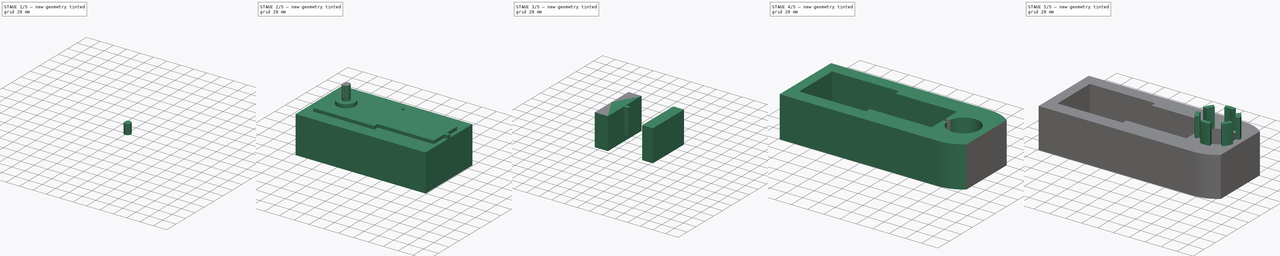
[diagram: build sequence overview — one tinted view per stage of 5, left to right]
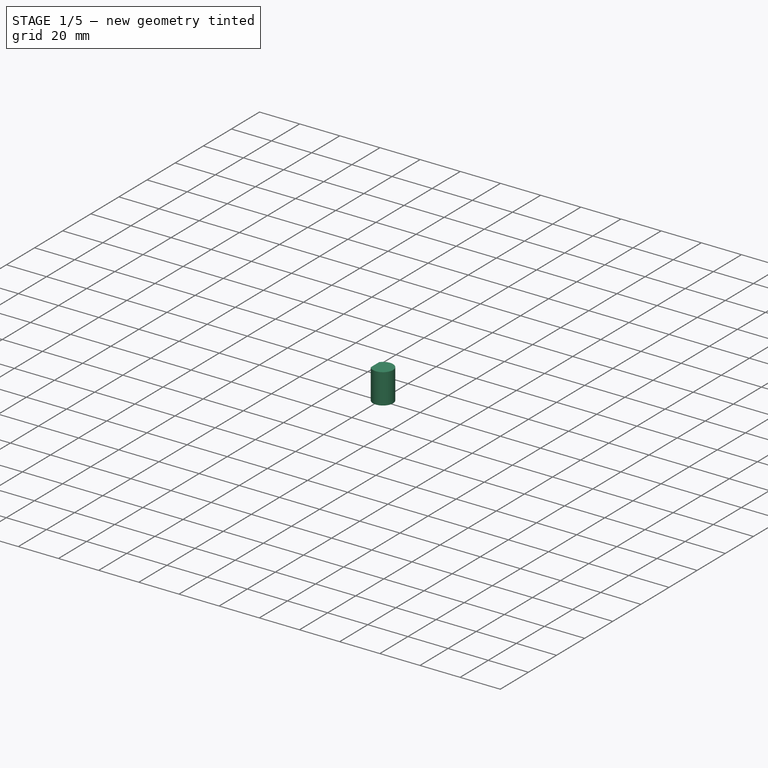
[diagram: stage 1 of 5 — iso view after this stage's code; geometry added in this stage tinted green]
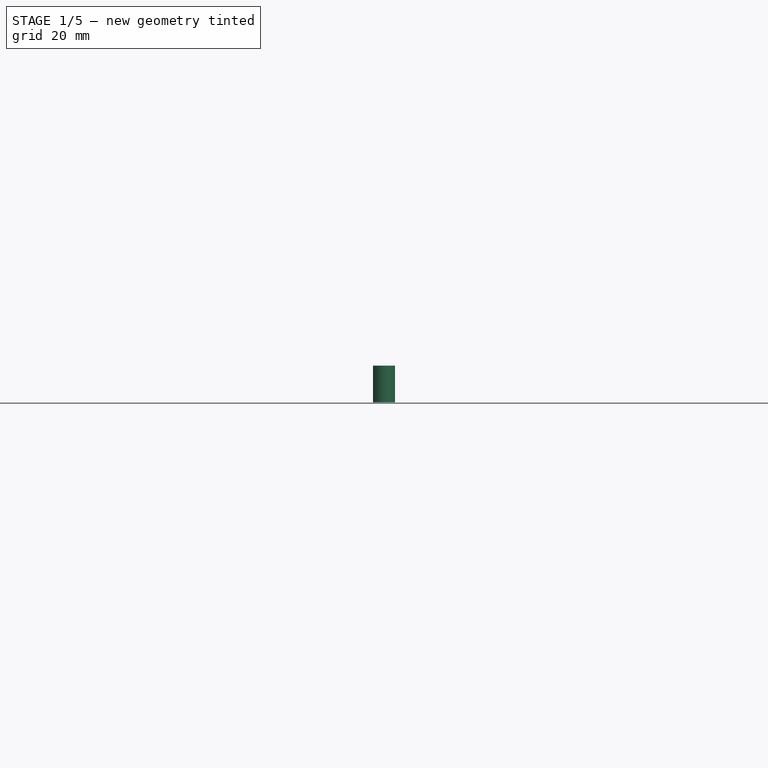
[diagram: stage 1 of 5 — front view after this stage's code; geometry added in this stage tinted green]
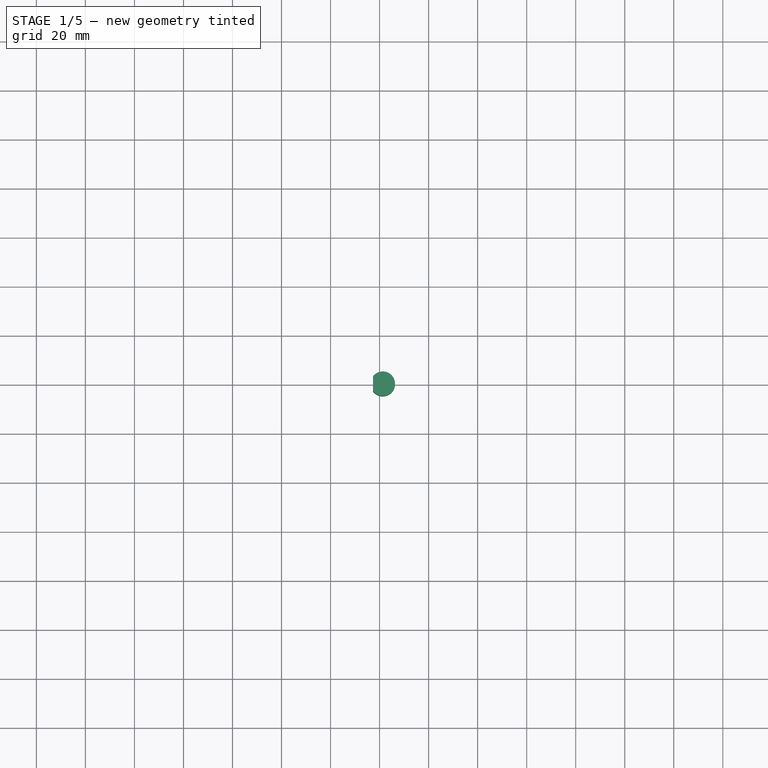
[diagram: stage 1 of 5 — top view after this stage's code; geometry added in this stage tinted green]
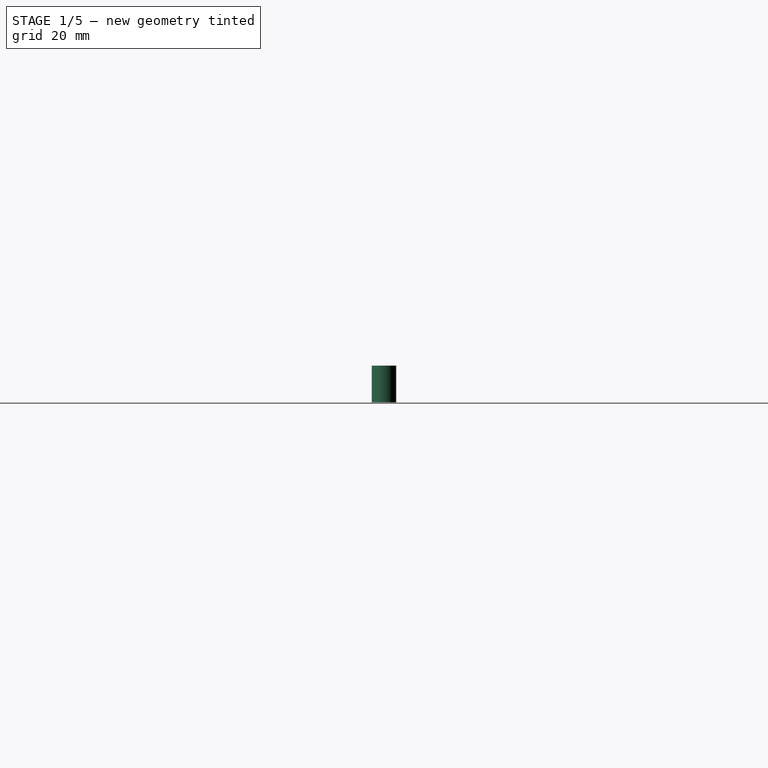
[diagram: stage 1 of 5 — right view after this stage's code; geometry added in this stage tinted green]
FCSTD DOCUMENT  (FreeCAD 0.20R29177 +426 (Git))
Label: motorMountMk2
License: All rights reserved
LicenseURL: http://en.wikipedia.org/wiki/All_rights_reserved
objects: Sketcher::SketchObject×9, Part::Extrusion×9, Part::Box×4, Part::MultiFuse×4, Part::Cut×4, Part::FeaturePython×1
note: 31 computed .brp shape members not serialized (recipe doc carries the construction recipe); baked Part::Feature solids carry a one-line shape summary decoded from their .brp

FEATURE [Part::Box] Box001  label="MotorHead"
  AttacherType = Attacher::AttachEngine3D
  Height = 44.4
  Length = 82
  Placement = pos=(-82,-9.63,0) rot=(0,0,1;0rad)
  Width = 58
FEATURE [Sketcher::SketchObject] Sketch
  ExternalGeometry = -> [Box001]
  FullyConstrained = true
  MapMode = 5
  Placement = pos=(-82,-9.63,44.4) rot=(0,0,1;0rad)
  Support = -> [Box001]
  sketch-geometry (2):
    g0: Circle CenterX=23.3 CenterY=30 CenterZ=0 NormalX=0 NormalY=0 NormalZ=1 AngleXU=0 Radius=12.3
    g1: GeomPoint X=23.3 Y=58 Z=0
  constraints (5):
    c: DistanceX(g0) = 23.3
    c: PointOnObject(g1,g-4)
    c: DistanceX(g-4,g1) = 23.3
    c: DistanceY(g0,g1) = 28
    c: Diameter(g0) = 24.6
FEATURE [Part::Extrusion] Extrude  label="MotorShaftBasePlate"
  Base = -> Sketch
  Dir = (0,0,1)
  DirMode = 2
  FaceMakerClass = Part::FaceMakerBullseye
  LengthFwd = 5
  LengthRev = 0
  Solid = true
  Symmetric = false
FEATURE [Sketcher::SketchObject] Sketch001
  ExternalGeometry = -> [Extrude,Box001]
  FullyConstrained = true
  MapMode = 5
  Placement = pos=(0,0,49.4) rot=(0,0,1;0rad)
  Support = -> [Extrude]
  sketch-geometry (3):
    g0: GeomPoint X=-82 Y=20.37 Z=0
    g1: GeomPoint X=-58.7 Y=48.37 Z=0
    g2: Circle CenterX=-58.7 CenterY=20.37 CenterZ=0 NormalX=0 NormalY=0 NormalZ=1 AngleXU=0 Radius=5
  constraints (6):
    c: PointOnObject(g0,g-4)
    c: PointOnObject(g1,g-5)
    c: DistanceY(g0,g-5) = 28
    c: DistanceX(g-5,g1) = 23.3
    c: Diameter(g2) = 10
    c: Coincident(g2,g-3)
FEATURE [Part::Extrusion] Extrude001  label="MotorShaftFull"
  Base = -> Sketch001
  Dir = (0,0,1)
  DirMode = 2
  FaceMakerClass = Part::FaceMakerBullseye
  LengthFwd = 4
  LengthRev = 0
  Solid = true
  Symmetric = false
FEATURE [Sketcher::SketchObject] Sketch002
  ExternalGeometry = -> [Extrude001]
  FullyConstrained = true
  MapMode = 5
  Placement = pos=(0,0,53.4) rot=(0,0,1;0rad)
  Support = -> [Extrude001]
  sketch-geometry (2):
    g0: LineSegment StartX=-62.7 StartY=23.37 StartZ=0 EndX=-62.7 EndY=17.37 EndZ=0
    g1: ArcOfCircle CenterX=-58.7 CenterY=20.37 CenterZ=0 NormalX=0 NormalY=0 NormalZ=1 AngleXU=0 Radius=5 StartAngle=3.78509 EndAngle=8.78128
  constraints (6):
    c: PointOnObject(g0,g-3)
    c: Vertical(g0)
    c: Coincident(g1,g-3)
    c: Coincident(g1,g0)
    c: Coincident(g1,g0)
    c: DistanceX(g0,g1) = 4
FEATURE [Part::Extrusion] Extrude002  label="MotorShaftD"
  Base = -> Sketch002
  Dir = (0,0,1)
  DirMode = 2
  FaceMakerClass = Part::FaceMakerBullseye
  LengthFwd = 15
  LengthRev = 0
  Solid = true
  Symmetric = false
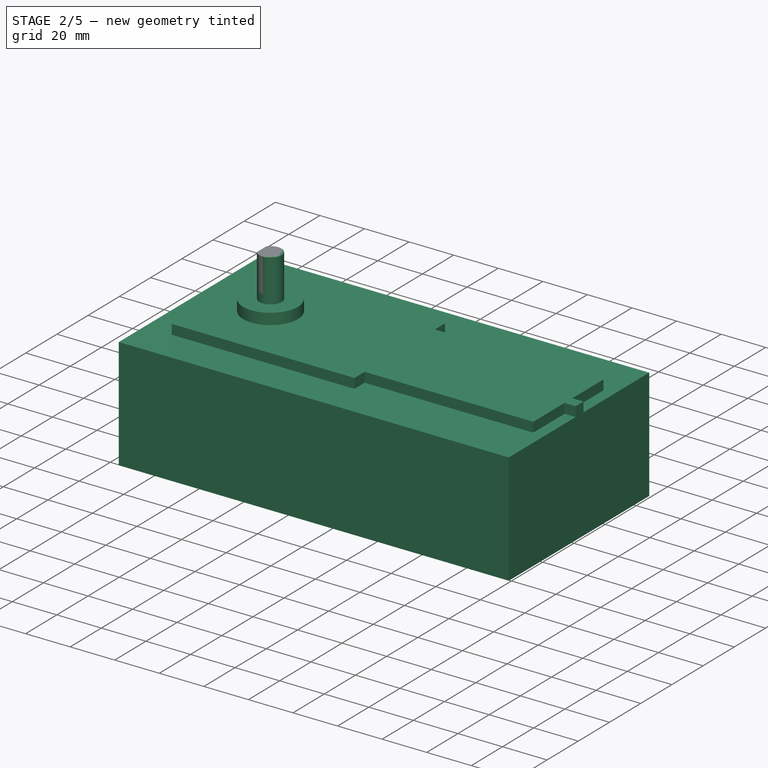
[diagram: stage 2 of 5 — iso view after this stage's code; geometry added in this stage tinted green]
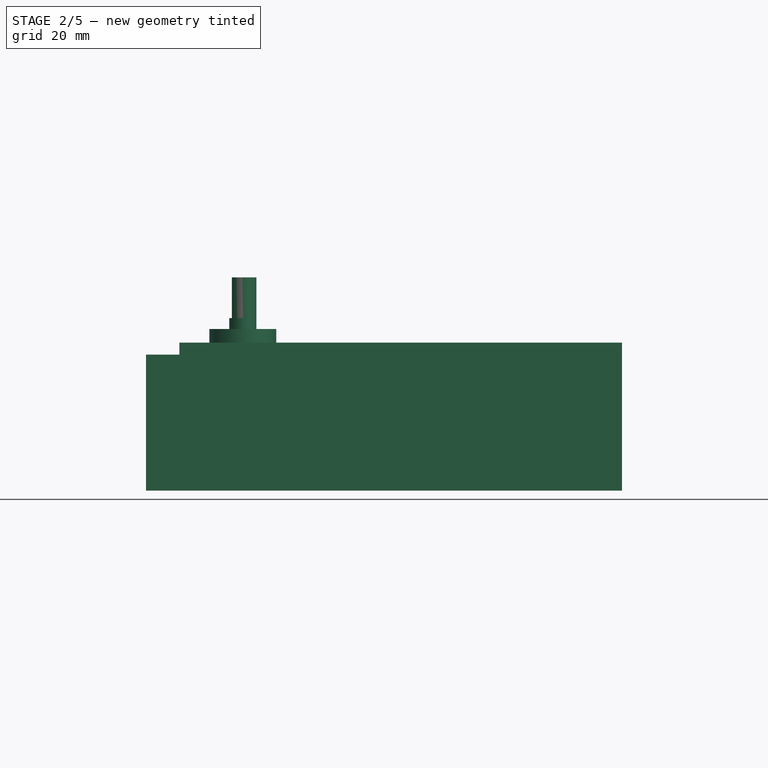
[diagram: stage 2 of 5 — front view after this stage's code; geometry added in this stage tinted green]
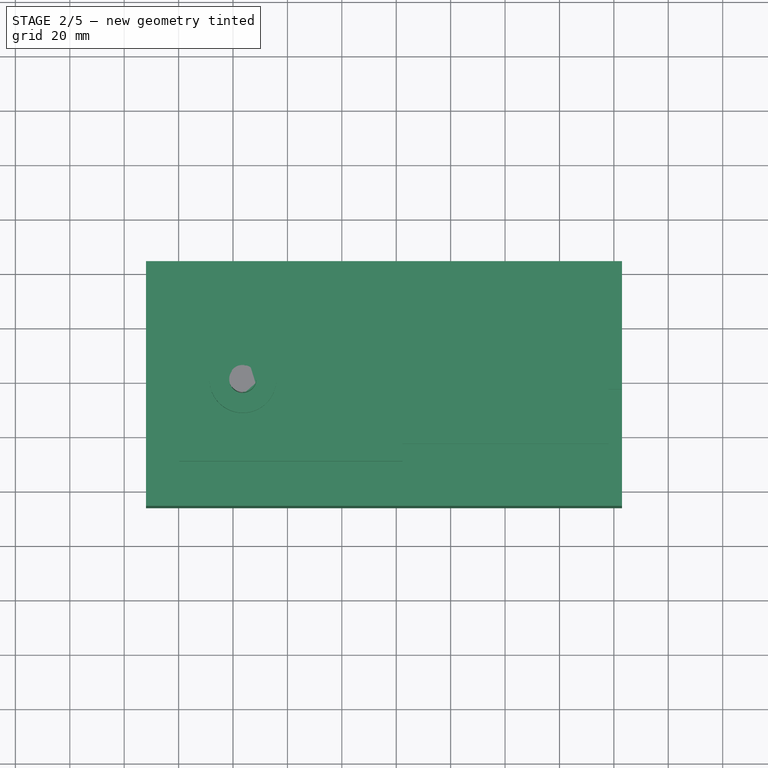
[diagram: stage 2 of 5 — top view after this stage's code; geometry added in this stage tinted green]
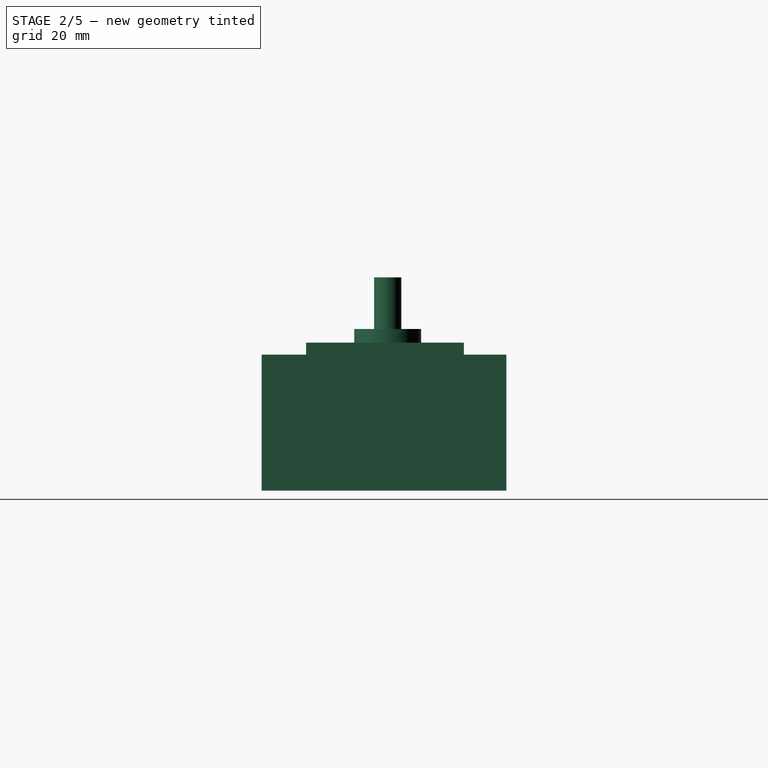
[diagram: stage 2 of 5 — right view after this stage's code; geometry added in this stage tinted green]
FEATURE [Part::Box] Box  label="MotorCyclinder"
  AttacherType = Attacher::AttachEngine3D
  Height = 44.4
  Length = 75.7
  Placement = pos=(0,-3.13,0) rot=(0,0,1;0rad)
  Width = 45
FEATURE [Part::Box] Box002  label="MotorCastOuter"
  AttacherType = Attacher::AttachEngine3D
  Height = 50
  Length = 175
  Placement = pos=(-92,-26,-10) rot=(0,0,1;0rad)
  Width = 90
FEATURE [Part::Box] Box007  label="NubChannel"
  AttacherType = Attacher::AttachEngine3D
  Height = 44.4
  Length = 5
  Placement = pos=(75.7,16.87,0) rot=(0,0,1;0rad)
  Width = 5
FEATURE [Part::MultiFuse] Fusion  label="MotorShaftAssembly"
  Shapes = -> [Extrude,Extrude001,Extrude002]
FEATURE [Part::MultiFuse] Fusion005  label="Motor"
  Placement = pos=(2.3,0,0) rot=(0,0,1;0rad)
  Shapes = -> [Box,Box001,Box007,Fusion]
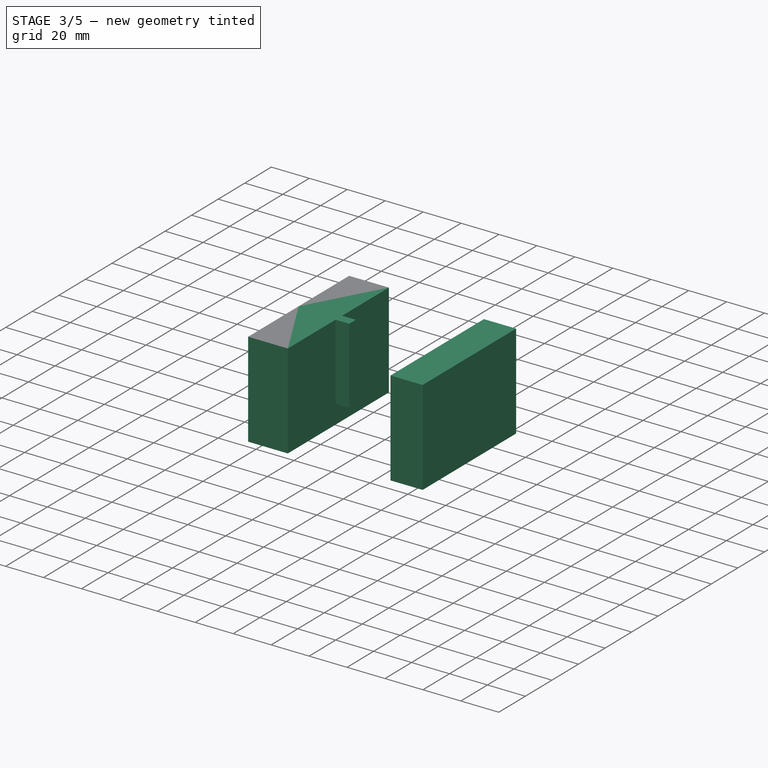
[diagram: stage 3 of 5 — iso view after this stage's code; geometry added in this stage tinted green]
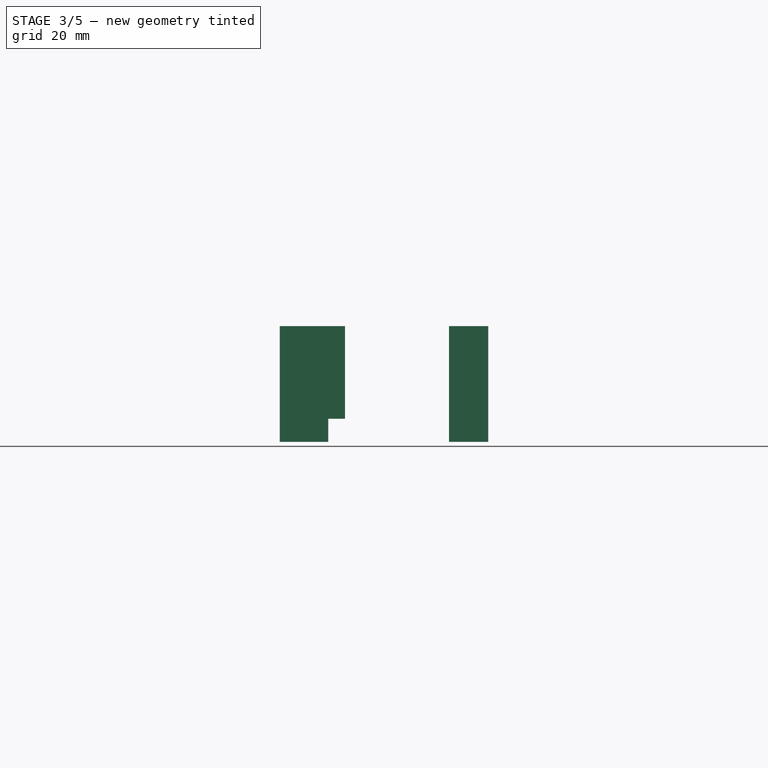
[diagram: stage 3 of 5 — front view after this stage's code; geometry added in this stage tinted green]
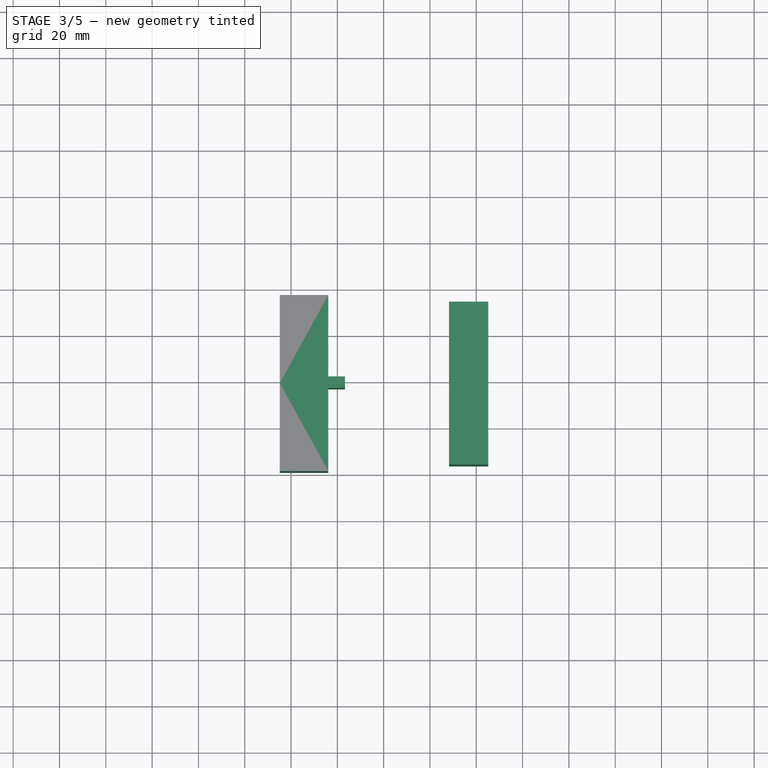
[diagram: stage 3 of 5 — top view after this stage's code; geometry added in this stage tinted green]
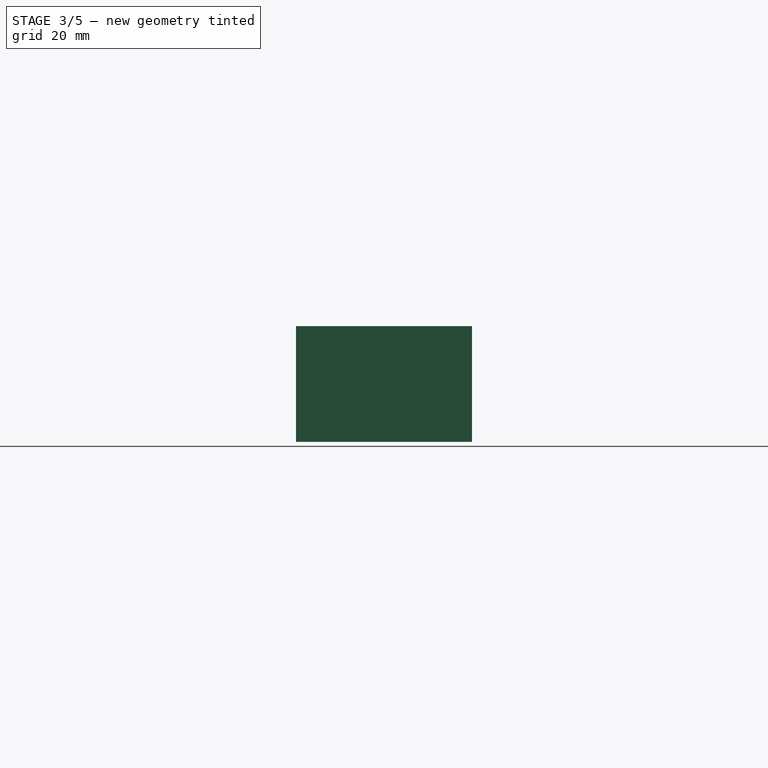
[diagram: stage 3 of 5 — right view after this stage's code; geometry added in this stage tinted green]
FEATURE [Part::FeaturePython] Tube  label="SteeringShaftMount"  # WARN: FeaturePython — macro-defined, semantics opaque (R4)
  AttacherType = Attacher::AttachEngine3D
  Height = 50
  InnerRadius = 19.07
  OuterRadius = 45
  Placement = pos=(120.15,19,-10) rot=(0,0,1;0.261799rad)
FEATURE [Sketcher::SketchObject] Sketch003
  ExternalGeometry = -> [Tube]
  FullyConstrained = true
  MapMode = 5
  Placement = pos=(120.15,19,40) rot=(0,0,1;0.261799rad)
  Support = -> [Tube]
  sketch-geometry (42):
    g0: Circle CenterX=0 CenterY=1.71e-14 CenterZ=0 NormalX=0 NormalY=0 NormalZ=1 AngleXU=0 Radius=24.075
    g1: ArcOfCircle CenterX=0 CenterY=1.71e-14 CenterZ=0 NormalX=0 NormalY=0 NormalZ=1 AngleXU=0 Radius=24.075 StartAngle=1.0472 EndAngle=1.5708
    g2: LineSegment StartX=0 StartY=1.71e-14 StartZ=0 EndX=12.0375 EndY=20.8496 EndZ=0
    g3: LineSegment StartX=0 StartY=1.71e-14 StartZ=0 EndX=0 EndY=24.075 EndZ=0
    g4: ArcOfCircle CenterX=0 CenterY=1.71e-14 CenterZ=0 NormalX=0 NormalY=0 NormalZ=1 AngleXU=0 Radius=19.075 StartAngle=1.0472 EndAngle=1.5708
    g5: LineSegment StartX=0 StartY=24.075 StartZ=0 EndX=1.2e-15 EndY=19.075 EndZ=0
    g6: LineSegment StartX=12.0375 StartY=20.8496 StartZ=0 EndX=9.5375 EndY=16.5194 EndZ=0
    g7: ArcOfCircle CenterX=0 CenterY=1.71e-14 CenterZ=0 NormalX=0 NormalY=0 NormalZ=1 AngleXU=0 Radius=24.075 StartAngle=0.523599 EndAngle=1.0472
    g8: ArcOfCircle CenterX=0 CenterY=1.71e-14 CenterZ=0 NormalX=0 NormalY=0 NormalZ=1 AngleXU=0 Radius=24.075 StartAngle=0 EndAngle=0.523599
    g9: LineSegment StartX=0 StartY=1.71e-14 StartZ=0 EndX=20.8496 EndY=12.0375 EndZ=0
    g10: LineSegment StartX=0 StartY=1.71e-14 StartZ=0 EndX=24.075 EndY=8.3e-15 EndZ=0
    g11: ArcOfCircle CenterX=0 CenterY=1.71e-14 CenterZ=0 NormalX=0 NormalY=0 NormalZ=1 AngleXU=0 Radius=19.07 StartAngle=0 EndAngle=0.523599
    g12: LineSegment StartX=19.07 StartY=1.41e-14 StartZ=0 EndX=24.075 EndY=8.3e-15 EndZ=0
    g13: LineSegment StartX=16.5151 StartY=9.535 StartZ=0 EndX=20.8496 EndY=12.0375 EndZ=0
    g14: ArcOfCircle CenterX=0 CenterY=1.71e-14 CenterZ=0 NormalX=0 NormalY=0 NormalZ=1 AngleXU=0 Radius=24.075 StartAngle=5.75959 EndAngle=6.28319
    g15: ArcOfCircle CenterX=0 CenterY=1.71e-14 CenterZ=0 NormalX=0 NormalY=0 NormalZ=1 AngleXU=0 Radius=24.075 StartAngle=5.23599 EndAngle=5.75959
    g16: LineSegment StartX=12.0375 StartY=-20.8496 StartZ=0 EndX=-1.8e-15 EndY=1.78e-14 EndZ=0
    g17: LineSegment StartX=0 StartY=1.71e-14 StartZ=0 EndX=20.8496 EndY=-12.0375 EndZ=0
    g18: ArcOfCircle CenterX=0 CenterY=1.71e-14 CenterZ=0 NormalX=0 NormalY=0 NormalZ=1 AngleXU=0 Radius=19.075 StartAngle=5.23599 EndAngle=5.75959
    g19: LineSegment StartX=9.5375 StartY=-16.5194 StartZ=0 EndX=12.0375 EndY=-20.8496 EndZ=0
    g20: LineSegment StartX=16.5194 StartY=-9.5375 StartZ=0 EndX=20.8496 EndY=-12.0375 EndZ=0
    g21: ArcOfCircle CenterX=0 CenterY=1.71e-14 CenterZ=0 NormalX=0 NormalY=0 NormalZ=1 AngleXU=0 Radius=24.075 StartAngle=4.71239 EndAngle=5.23599
    g22: ArcOfCircle CenterX=0 CenterY=1.71e-14 CenterZ=0 NormalX=0 NormalY=0 NormalZ=1 AngleXU=0 Radius=24.075 StartAngle=4.18879 EndAngle=4.71239
    g23: LineSegment StartX=0 StartY=1.71e-14 StartZ=0 EndX=-4.4e-15 EndY=-24.075 EndZ=0
    g24: LineSegment StartX=0 StartY=1.71e-14 StartZ=0 EndX=-12.0375 EndY=-20.8496 EndZ=0
    g25: ArcOfCircle CenterX=0 CenterY=1.71e-14 CenterZ=0 NormalX=0 NormalY=0 NormalZ=1 AngleXU=0 Radius=19.07 StartAngle=4.18879 EndAngle=4.71239
    g26: LineSegment StartX=-12.0375 StartY=-20.8496 StartZ=0 EndX=-9.535 EndY=-16.5151 EndZ=0
    g27: LineSegment StartX=-3.5e-15 StartY=-19.07 StartZ=0 EndX=-4.4e-15 EndY=-24.075 EndZ=0
    g28: ArcOfCircle CenterX=0 CenterY=1.71e-14 CenterZ=0 NormalX=0 NormalY=0 NormalZ=1 AngleXU=0 Radius=24.075 StartAngle=3.66519 EndAngle=4.18879
    g29: ArcOfCircle CenterX=0 CenterY=1.71e-14 CenterZ=0 NormalX=0 NormalY=0 NormalZ=1 AngleXU=0 Radius=24.075 StartAngle=3.14159 EndAngle=3.66519
    g30: LineSegment StartX=-20.8496 StartY=-12.0375 StartZ=0 EndX=0 EndY=1.78e-14 EndZ=0
    g31: LineSegment StartX=0 StartY=1.71e-14 StartZ=0 EndX=-24.075 EndY=1.71e-14 EndZ=0
    g32: ArcOfCircle CenterX=0 CenterY=1.71e-14 CenterZ=0 NormalX=0 NormalY=0 NormalZ=1 AngleXU=0 Radius=19.07 StartAngle=3.14159 EndAngle=3.66519
    g33: LineSegment StartX=-19.07 StartY=1.71e-14 StartZ=0 EndX=-24.075 EndY=1.71e-14 EndZ=0
    g34: LineSegment StartX=-20.8496 StartY=-12.0375 StartZ=0 EndX=-16.5151 EndY=-9.535 EndZ=0
    g35: ArcOfCircle CenterX=0 CenterY=1.71e-14 CenterZ=0 NormalX=0 NormalY=0 NormalZ=1 AngleXU=0 Radius=24.075 StartAngle=2.61799 EndAngle=3.14159
    g36: ArcOfCircle CenterX=0 CenterY=1.71e-14 CenterZ=0 NormalX=0 NormalY=0 NormalZ=1 AngleXU=0 Radius=24.075 StartAngle=2.0944 EndAngle=2.61799
    g37: LineSegment StartX=0 StartY=1.71e-14 StartZ=0 EndX=-12.0375 EndY=20.8496 EndZ=0
    g38: LineSegment StartX=-20.8496 StartY=12.0375 StartZ=0 EndX=0 EndY=1.78e-14 EndZ=0
    g39: ArcOfCircle CenterX=0 CenterY=1.71e-14 CenterZ=0 NormalX=0 NormalY=0 NormalZ=1 AngleXU=0 Radius=19.075 StartAngle=2.0944 EndAngle=2.61799
    g40: LineSegment StartX=-16.5194 StartY=9.5375 StartZ=0 EndX=-20.8496 EndY=12.0375 EndZ=0
    g41: LineSegment StartX=-12.0375 StartY=20.8496 StartZ=0 EndX=-9.5375 EndY=16.5194 EndZ=0
  constraints (109):
    c: Coincident(g0,g-4)
    c: Radius(g0) = 24.075
    c: Coincident(g1,g0)
    c: PointOnObject(g1,g0)
    c: Angle(g1) = 0.523599
    c: Coincident(g2,g0)
    c: Coincident(g2,g1)
    c: Coincident(g3,g0)
    c: Coincident(g3,g1)
    c: Vertical(g3)
    c: Coincident(g4,g0)
    c: PointOnObject(g4,g3)
    c: PointOnObject(g4,g2)
    c: Radius(g4) = 19.075
    c: Coincident(g5,g1)
    c: Coincident(g5,g4)
    c: Coincident(g6,g1)
    c: Coincident(g6,g4)
    c: Coincident(g7,g0)
    c: Coincident(g7,g1)
    c: Angle(g7) = 0.523599
    c: Coincident(g8,g0)
    c: Coincident(g8,g7)
    c: Angle(g8) = 0.523599
    c: Coincident(g9,g0)
    c: Coincident(g9,g7)
    c: Coincident(g10,g0)
    c: Coincident(g10,g8)
    c: Coincident(g11,g0)
    c: PointOnObject(g11,g-3)
    c: Angle(g11) = 0.523599
    c: PointOnObject(g11,g9)
    c: Coincident(g12,g11)
    c: Coincident(g12,g8)
    c: Coincident(g13,g11)
    c: Coincident(g13,g7)
    c: Coincident(g14,g0)
    c: Coincident(g14,g8)
    c: Angle(g14) = 0.523599
    c: Coincident(g15,g0)
    c: Coincident(g15,g14)
    c: Angle(g15) = 0.523599
    c: Coincident(g16,g15)
    c: Coincident(g16,g0)
    c: Coincident(g17,g0)
    c: Coincident(g17,g14)
    c: Coincident(g18,g0)
    c: PointOnObject(g18,g17)
    c: PointOnObject(g18,g16)
    c: Radius(g18) = 19.075
    c: Coincident(g19,g18)
    c: Coincident(g19,g15)
    c: Coincident(g20,g18)
    c: Coincident(g20,g14)
    c: Coincident(g21,g0)
    c: Coincident(g21,g15)
    c: Angle(g21) = 0.523599
    c: Coincident(g22,g0)
    c: Coincident(g22,g21)
    c: Angle(g22) = 0.523599
    c: Coincident(g23,g0)
    c: Coincident(g23,g21)
    c: Coincident(g24,g0)
    c: Coincident(g24,g22)
    c: Coincident(g25,g0)
    c: PointOnObject(g25,g23)
    c: PointOnObject(g25,g-3)
    c: Angle(g25) = 0.523599
    c: Coincident(g26,g22)
    c: Coincident(g26,g25)
    c: Coincident(g27,g25)
    c: Coincident(g27,g21)
    c: Coincident(g28,g0)
    c: PointOnObject(g28,g22)
    c: Angle(g28) = 0.523599
    c: Coincident(g29,g0)
    c: Coincident(g29,g28)
    c: Angle(g29) = 0.523599
    c: Coincident(g30,g28)
    c: Coincident(g30,g0)
    c: Coincident(g31,g0)
    c: Coincident(g31,g29)
    c: Horizontal(g31)
    c: Coincident(g32,g0)
    c: PointOnObject(g32,g-3)
    c: Coincident(g33,g32)
    c: Coincident(g33,g29)
    c: Horizontal(g33)
    c: Coincident(g34,g28)
    c: Coincident(g34,g32)
    c: Angle(g32) = 0.523599
    c: Coincident(g35,g0)
    c: Coincident(g35,g29)
    c: Angle(g35) = 0.523599
    c: Coincident(g36,g0)
    c: Coincident(g36,g35)
    c: Angle(g36) = 0.523599
    c: Coincident(g37,g0)
    c: Coincident(g37,g36)
    c: Coincident(g38,g35)
    c: Coincident(g38,g0)
    c: Coincident(g39,g0)
    c: PointOnObject(g39,g38)
    c: PointOnObject(g39,g37)
    c: Radius(g39) = 19.075
    c: Coincident(g40,g39)
    c: Coincident(g40,g35)
    c: Coincident(g41,g36)
    c: Coincident(g41,g39)
FEATURE [Sketcher::SketchObject] Sketch004
  ExternalGeometry = -> [Tube]
  FullyConstrained = true
  MapMode = 5
  Placement = pos=(120.15,19,40) rot=(0,0,1;0.261799rad)
  Support = -> [Tube]
  sketch-geometry (17):
    g0: LineSegment StartX=27.1135 StartY=-7.26505 StartZ=0 EndX=43.4667 EndY=-11.6469 EndZ=0
    g1: LineSegment StartX=-4.26e-14 StartY=-3.6e-15 StartZ=0 EndX=18.4202 EndY=-4.93568 EndZ=0
    g2: LineSegment StartX=18.4202 StartY=-4.93568 StartZ=0 EndX=27.1135 EndY=-7.26505 EndZ=0
    g3: LineSegment StartX=27.1135 StartY=-7.26505 StartZ=0 EndX=36.2167 EndY=26.7086 EndZ=0
    g4: LineSegment StartX=27.1135 StartY=-7.26505 StartZ=0 EndX=18.0103 EndY=-41.2387 EndZ=0
    g5: LineSegment StartX=36.2167 StartY=26.7086 StartZ=0 EndX=52.5699 EndY=22.3268 EndZ=0
    g6: LineSegment StartX=52.5699 StartY=22.3268 StartZ=0 EndX=43.4667 EndY=-11.6469 EndZ=0
    g7: LineSegment StartX=43.4667 StartY=-11.6469 StartZ=0 EndX=34.3635 EndY=-45.6205 EndZ=0
    g8: LineSegment StartX=18.0103 StartY=-41.2387 StartZ=0 EndX=34.3635 EndY=-45.6205 EndZ=0
    g9: LineSegment StartX=-33.0905 StartY=-30.4962 StartZ=0 EndX=-13.4091 EndY=42.9557 EndZ=0
    g10: LineSegment StartX=-23.2498 StartY=6.22977 StartZ=0 EndX=-43.4667 EndY=11.6469 EndZ=0
    g11: LineSegment StartX=-4.26e-14 StartY=-3.6e-15 StartZ=0 EndX=-18.4202 EndY=4.93568 EndZ=0
    g12: LineSegment StartX=-18.4202 StartY=4.93568 StartZ=0 EndX=-23.2498 EndY=6.22977 EndZ=0
    g13: LineSegment StartX=-13.4091 StartY=42.9557 StartZ=0 EndX=-33.626 EndY=48.3728 EndZ=0
    g14: LineSegment StartX=-43.4667 StartY=11.6469 StartZ=0 EndX=-33.626 EndY=48.3728 EndZ=0
    g15: LineSegment StartX=-43.4667 StartY=11.6469 StartZ=0 EndX=-53.3074 EndY=-25.0791 EndZ=0
    g16: LineSegment StartX=-53.3074 StartY=-25.0791 StartZ=0 EndX=-33.0905 EndY=-30.4962 EndZ=0
  constraints (48):
    c: Coincident(g1,g-4)
    c: PointOnObject(g0,g-4)
    c: Coincident(g2,g0)
    c: Coincident(g1,g2)
    c: PointOnObject(g1,g-3)
    c: Angle(g1,g-1) = 0.261799
    c: Parallel(g1,g2)
    c: Parallel(g0,g2)
    c: Distance(g2) = 9
    c: Coincident(g3,g0)
    c: PointOnObject(g3,g-4)
    c: Perpendicular(g0,g3)
    c: Coincident(g4,g3)
    c: PointOnObject(g4,g-4)
    c: Perpendicular(g0,g4)
    c: Coincident(g5,g3)
    c: Coincident(g6,g5)
    c: Coincident(g6,g0)
    c: Coincident(g7,g6)
    c: Coincident(g8,g4)
    c: Coincident(g8,g7)
    c: Perpendicular(g8,g7)
    c: Perpendicular(g4,g8)
    c: Perpendicular(g5,g6)
    c: Perpendicular(g3,g5)
    c: Coincident(g11,g1)
    c: PointOnObject(g10,g-4)
    c: PointOnObject(g9,g-4)
    c: PointOnObject(g9,g-4)
    c: Coincident(g12,g10)
    c: Parallel(g10,g1)
    c: PointOnObject(g12,g9)
    c: Coincident(g11,g12)
    c: Parallel(g11,g1)
    c: Parallel(g12,g1)
    c: Perpendicular(g9,g11)
    c: PointOnObject(g11,g-3)
    c: Distance(g12) = 5
    c: Coincident(g13,g9)
    c: Coincident(g14,g10)
    c: Coincident(g14,g13)
    c: Coincident(g15,g10)
    c: Coincident(g16,g15)
    c: Coincident(g16,g9)
    c: Perpendicular(g15,g16)
    c: Perpendicular(g9,g16)
    c: Perpendicular(g13,g14)
    c: Perpendicular(g9,g13)
FEATURE [Part::Extrusion] Extrude005  label="RoundOff"
  Base = -> Sketch004
  Dir = (0,0,1)
  DirMode = 2
  FaceMakerClass = Part::FaceMakerBullseye
  LengthFwd = 0
  LengthRev = 50
  Solid = true
  Symmetric = false
FEATURE [Part::Cut] Cut  label="MotorCast"
  Base = -> Box002
  Tool = -> Fusion005
FEATURE [Part::Extrusion] Extrude008
  Base = -> Sketch005
  Dir = (0,0,1)
  DirMode = 2
  FaceMakerClass = Part::FaceMakerBullseye
  LengthFwd = 40
  LengthRev = 0
  Placement = pos=(18.29,0,0) rot=(0,0,1;0rad)
  Solid = true
  Symmetric = false
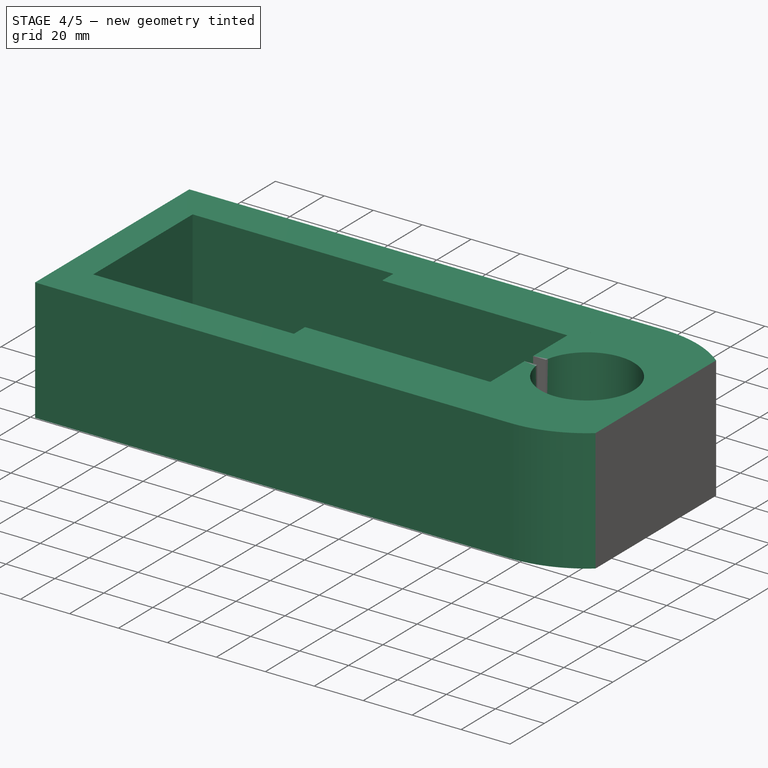
[diagram: stage 4 of 5 — iso view after this stage's code; geometry added in this stage tinted green]
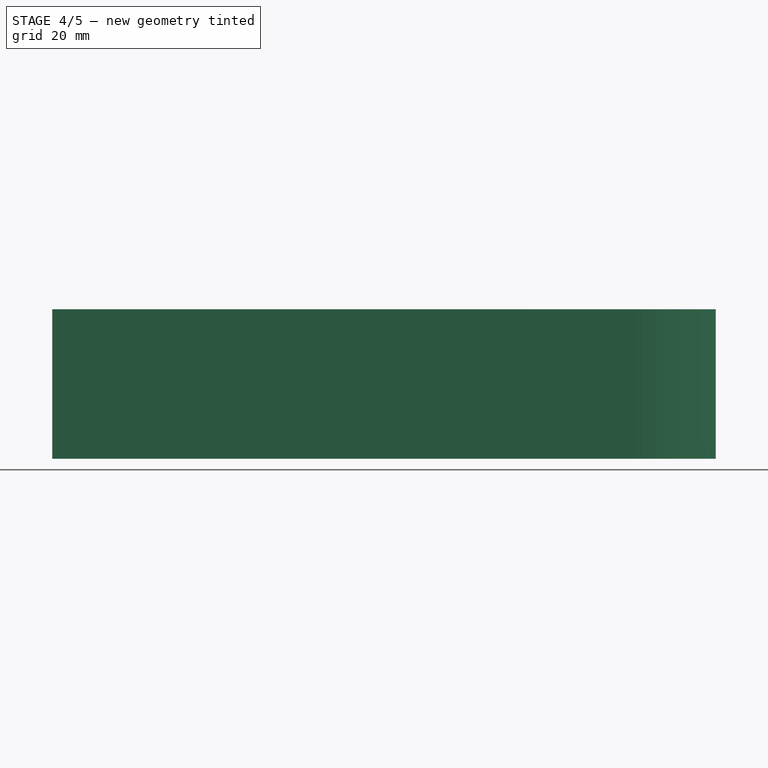
[diagram: stage 4 of 5 — front view after this stage's code; geometry added in this stage tinted green]
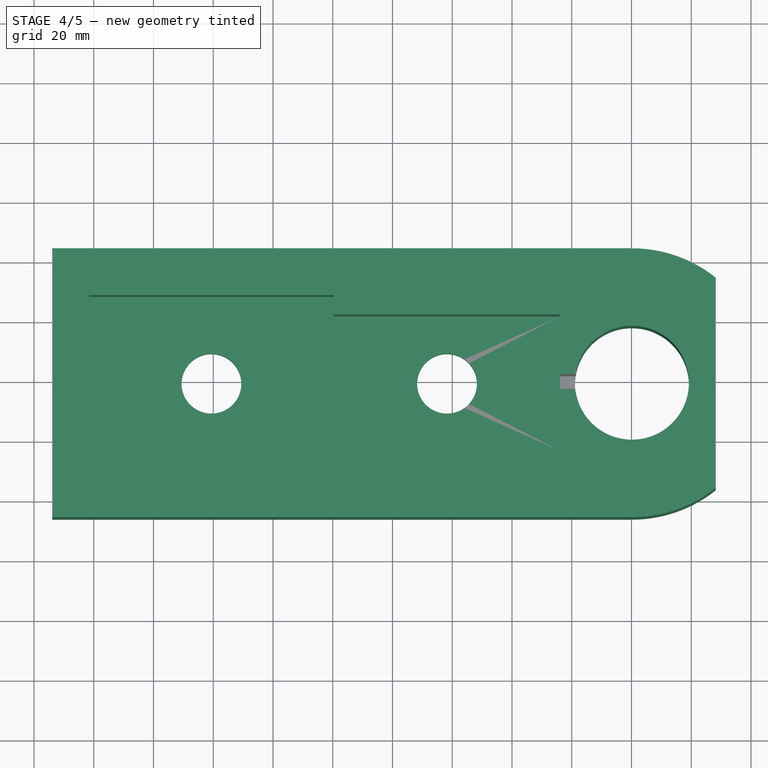
[diagram: stage 4 of 5 — top view after this stage's code; geometry added in this stage tinted green]
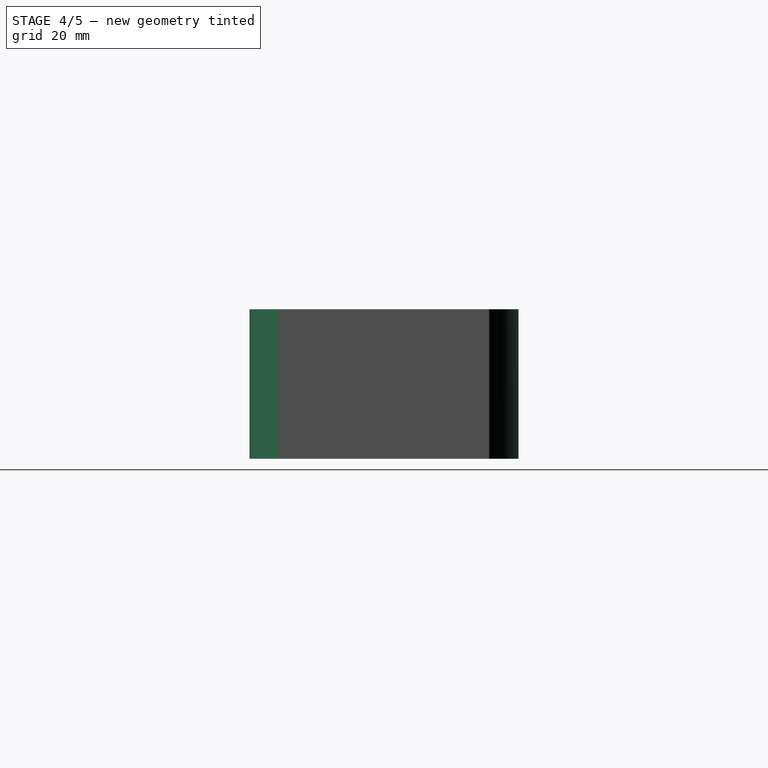
[diagram: stage 4 of 5 — right view after this stage's code; geometry added in this stage tinted green]
FEATURE [Part::Cut] Cut001  label="SteeringShaftRoundedOff"
  Base = -> Tube
  Tool = -> Extrude005
FEATURE [Sketcher::SketchObject] Sketch005
  ExternalGeometry = -> [Cut]
  FullyConstrained = true
  MapMode = 5
  Support = -> [Cut]
  sketch-geometry (8):
    g0: LineSegment StartX=78 StartY=16.87 StartZ=0 EndX=83 EndY=16.87 EndZ=0
    g1: LineSegment StartX=78 StartY=16.87 StartZ=0 EndX=76 EndY=16.87 EndZ=0
    g2: LineSegment StartX=78 StartY=21.87 StartZ=0 EndX=83 EndY=21.87 EndZ=0
    g3: LineSegment StartX=83 StartY=21.87 StartZ=0 EndX=85 EndY=21.87 EndZ=0
    g4: LineSegment StartX=76 StartY=16.87 StartZ=0 EndX=85 EndY=16.87 EndZ=0
    g5: LineSegment StartX=85 StartY=16.87 StartZ=0 EndX=85 EndY=21.87 EndZ=0
    g6: LineSegment StartX=85 StartY=21.87 StartZ=0 EndX=76 EndY=21.87 EndZ=0
    g7: LineSegment StartX=76 StartY=21.87 StartZ=0 EndX=76 EndY=16.87 EndZ=0
  constraints (20):
    c: Coincident(g0,g-4)
    c: Coincident(g0,g-4)
    c: Coincident(g1,g0)
    c: Horizontal(g1)
    c: Coincident(g2,g-3)
    c: Coincident(g2,g-3)
    c: Coincident(g3,g2)
    c: Horizontal(g3)
    c: Equal(g3,g1)
    c: Distance(g3) = 2
    c: Coincident(g4,g5)
    c: Coincident(g5,g6)
    c: Coincident(g6,g7)
    c: Coincident(g7,g4)
    c: Horizontal(g4)
    c: Horizontal(g6)
    c: Vertical(g5)
    c: Vertical(g7)
    c: Coincident(g4,g1)
    c: Coincident(g5,g3)
FEATURE [Sketcher::SketchObject] Sketch006  label="HolePunchExtrude"
  ExternalGeometry = -> [Cut]
  FullyConstrained = true
  MapMode = 5
  Support = -> [Cut]
  sketch-geometry (8):
    g0: Circle CenterX=-38.7 CenterY=19.37 CenterZ=0 NormalX=0 NormalY=0 NormalZ=1 AngleXU=0 Radius=10
    g1: Circle CenterX=40.15 CenterY=19.37 CenterZ=0 NormalX=0 NormalY=0 NormalZ=1 AngleXU=0 Radius=10
    g2: LineSegment StartX=2.3 StartY=41.87 StartZ=0 EndX=2.3 EndY=19.37 EndZ=0
    g3: LineSegment StartX=2.3 StartY=19.37 StartZ=0 EndX=2.3 EndY=-3.13 EndZ=0
    g4: LineSegment StartX=-38.7 StartY=19.37 StartZ=0 EndX=-79.7 EndY=19.37 EndZ=0
    g5: LineSegment StartX=-38.7 StartY=19.37 StartZ=0 EndX=2.3 EndY=19.37 EndZ=0
    g6: LineSegment StartX=2.3 StartY=19.37 StartZ=0 EndX=40.15 EndY=19.37 EndZ=0
    g7: LineSegment StartX=40.15 StartY=19.37 StartZ=0 EndX=78 EndY=19.37 EndZ=0
  constraints (22):
    c: Coincident(g5,g0)
    c: Coincident(g6,g1)
    c: Coincident(g2,g-3)
    c: Coincident(g3,g-3)
    c: Coincident(g2,g3)
    c: Equal(g2,g3)
    c: Coincident(g4,g0)
    c: PointOnObject(g4,g-4)
    c: Horizontal(g4)
    c: Parallel(g3,g2)
    c: Coincident(g5,g6)
    c: Horizontal(g5)
    c: Horizontal(g6)
    c: PointOnObject(g2,g6)
    c: PointOnObject(g5,g2)
    c: Equal(g5,g4)
    c: Coincident(g7,g1)
    c: PointOnObject(g7,g-5)
    c: Horizontal(g7)
    c: Equal(g6,g7)
    c: Radius(g0) = 10
    c: Radius(g1) = 10
FEATURE [Part::Extrusion] Extrude007  label="HolePunchExtrude001"
  Base = -> Sketch006
  Dir = (0,0,1)
  DirMode = 2
  FaceMakerClass = Part::FaceMakerBullseye
  LengthFwd = 0
  LengthRev = 20
  Solid = true
  Symmetric = false
FEATURE [Part::Cut] Cut002  label="MotorCastPunch"
  Base = -> Cut
  Placement = pos=(18.1,0,0) rot=(0,0,1;0rad)
  Tool = -> Extrude007
FEATURE [Sketcher::SketchObject] Sketch007
  FullyConstrained = false
  MapMode = 5
  Placement = pos=(0,0,40) rot=(0,0,1;0rad)
  sketch-geometry (20):
    g0: LineSegment StartX=101.1 StartY=-21.7688 StartZ=0 EndX=148.22 EndY=-21.7688 EndZ=0
    g1: LineSegment StartX=148.22 StartY=-16.1721 StartZ=0 EndX=148.22 EndY=-21.7688 EndZ=0
    g2: LineSegment StartX=101.1 StartY=-26 StartZ=0 EndX=148.22 EndY=-26 EndZ=0
    g3: LineSegment StartX=148.22 StartY=-26 StartZ=0 EndX=148.22 EndY=-21.7688 EndZ=0
    g4: LineSegment StartX=148.22 StartY=-21.7688 StartZ=0 EndX=101.1 EndY=-21.7688 EndZ=0
    g5: LineSegment StartX=101.1 StartY=-21.7688 StartZ=0 EndX=101.1 EndY=-26 EndZ=0
    g6: LineSegment StartX=101.1 StartY=59.7688 StartZ=0 EndX=148.22 EndY=59.7688 EndZ=0
    g7: LineSegment StartX=148.22 StartY=59.7688 StartZ=0 EndX=148.22 EndY=54.1721 EndZ=0
    g8: LineSegment StartX=148.22 StartY=64 StartZ=0 EndX=148.22 EndY=59.7688 EndZ=0
    g9: LineSegment StartX=148.22 StartY=59.7688 StartZ=0 EndX=101.1 EndY=59.7688 EndZ=0
    g10: LineSegment StartX=101.1 StartY=59.7688 StartZ=0 EndX=101.1 EndY=64 EndZ=0
    g11: LineSegment StartX=120.15 StartY=19 StartZ=0 EndX=120.15 EndY=59.7688 EndZ=0
    g12: LineSegment StartX=101.1 StartY=64 StartZ=0 EndX=120.15 EndY=64 EndZ=0
    g13: LineSegment StartX=120.15 StartY=64 StartZ=0 EndX=148.22 EndY=64 EndZ=0
    g14: LineSegment StartX=120.15 StartY=64 StartZ=0 EndX=120.15 EndY=59.7688 EndZ=0
    g15: LineSegment StartX=101.1 StartY=59.7688 StartZ=0 EndX=120.15 EndY=59.7688 EndZ=0
    g16: LineSegment StartX=120.15 StartY=19 StartZ=0 EndX=120.15 EndY=-21.7688 EndZ=0
    g17: LineSegment StartX=120.15 StartY=-21.7688 StartZ=0 EndX=120.15 EndY=-26 EndZ=0
    g18: LineSegment StartX=101.1 StartY=-26 StartZ=0 EndX=120.15 EndY=-26 EndZ=0
    g19: LineSegment StartX=101.1 StartY=-21.7688 StartZ=0 EndX=120.15 EndY=-21.7688 EndZ=0
  constraints (43):
    c: Horizontal(g0)
    c: Coincident(g1,g0)
    c: Vertical(g1)
    c: Coincident(g2,g3)
    c: Coincident(g3,g4)
    c: Coincident(g4,g5)
    c: Coincident(g5,g2)
    c: Horizontal(g2)
    c: Horizontal(g4)
    c: Vertical(g3)
    c: Vertical(g5)
    c: Coincident(g3,g0)
    c: Horizontal(g6)
    c: Coincident(g7,g6)
    c: Vertical(g7)
    c: Coincident(g13,g8)
    c: Coincident(g8,g9)
    c: Coincident(g9,g10)
    c: Coincident(g10,g12)
    c: Horizontal(g9)
    c: Vertical(g8)
    c: Vertical(g10)
    c: Coincident(g8,g6)
    c: PointOnObject(g11,g6)
    c: Vertical(g11)
    c: Coincident(g12,g13)
    c: Horizontal(g12)
    c: Horizontal(g13)
    c: Coincident(g14,g12)
    c: Coincident(g14,g11)
    c: Vertical(g14)
    c: Coincident(g15,g10)
    c: Coincident(g15,g14)
    c: Coincident(g16,g11)
    c: PointOnObject(g16,g0)
    c: Vertical(g16)
    c: Coincident(g17,g16)
    c: PointOnObject(g17,g2)
    c: Vertical(g17)
    c: Coincident(g18,g5)
    c: Coincident(g18,g17)
    c: Coincident(g19,g5)
    c: Coincident(g19,g17)
FEATURE [Part::Extrusion] Extrude009  label="BridgingBlocks"
  Base = -> Sketch007
  Dir = (0,0,1)
  DirMode = 2
  FaceMakerClass = Part::FaceMakerBullseye
  LengthFwd = 0
  LengthRev = 50
  Solid = true
  Symmetric = false
FEATURE [Part::Cut] Cut003
  Base = -> Cut001
  Tool = -> Extrude008
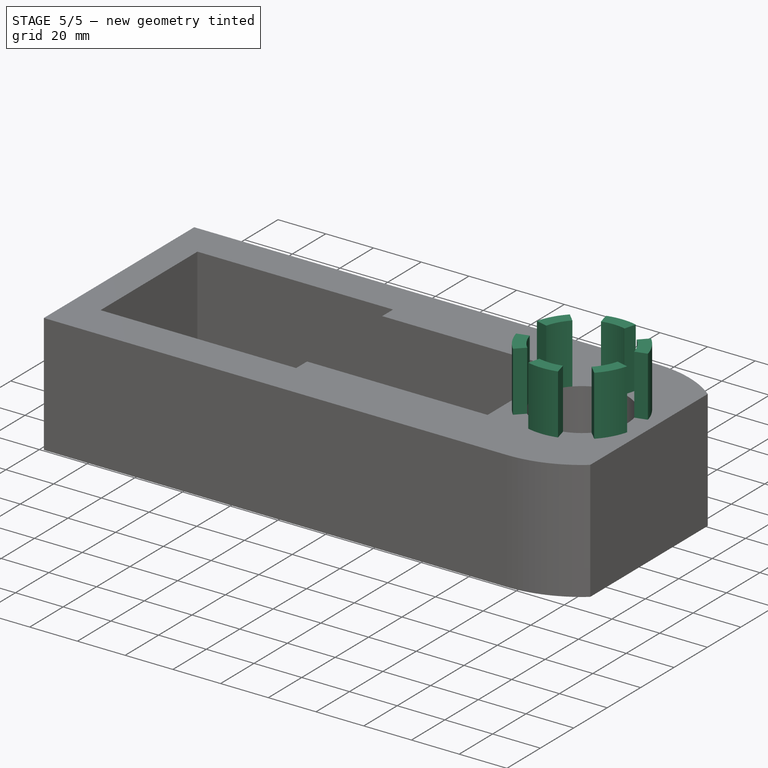
[diagram: stage 5 of 5 — iso view after this stage's code; geometry added in this stage tinted green]
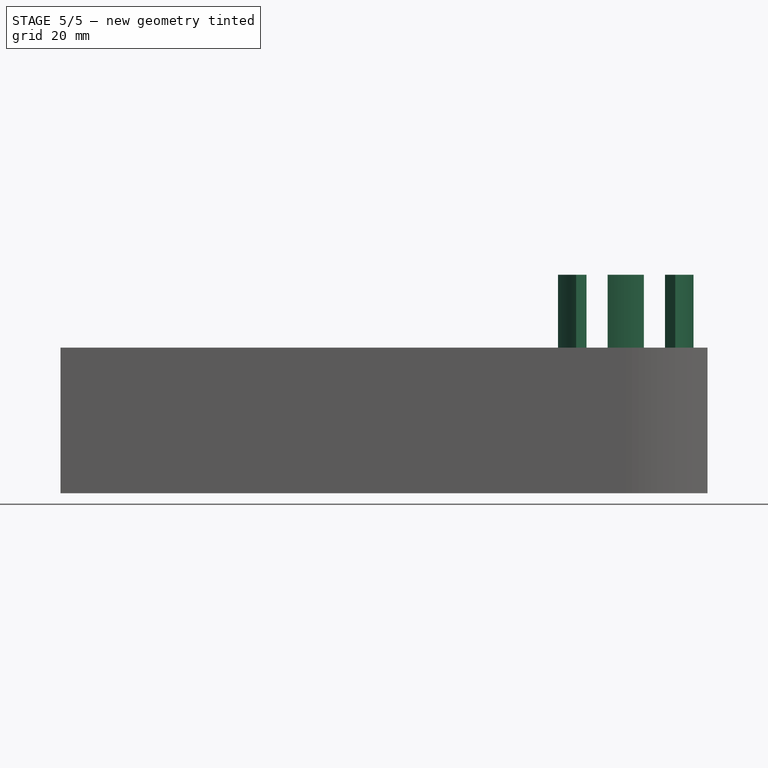
[diagram: stage 5 of 5 — front view after this stage's code; geometry added in this stage tinted green]
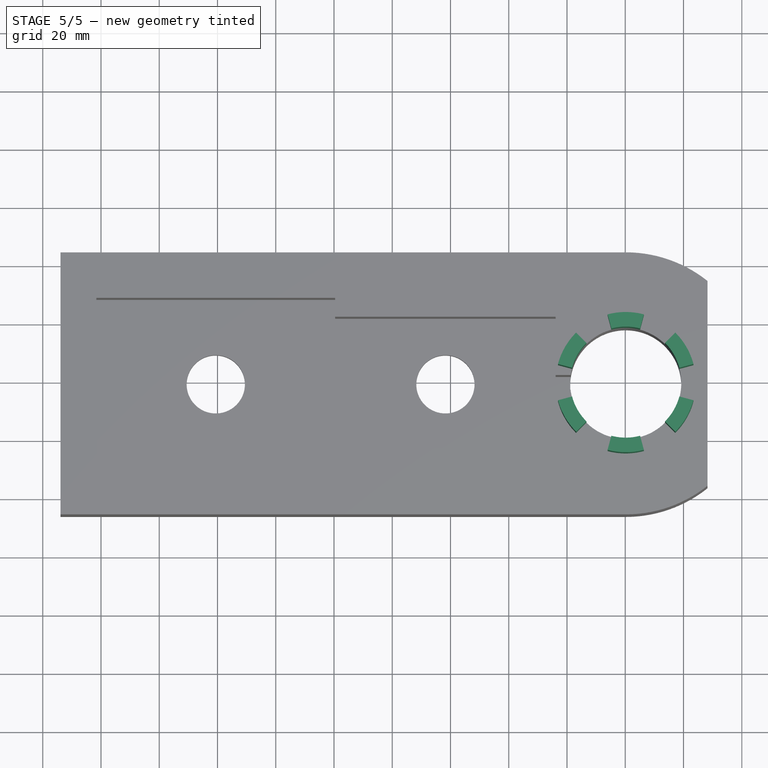
[diagram: stage 5 of 5 — top view after this stage's code; geometry added in this stage tinted green]
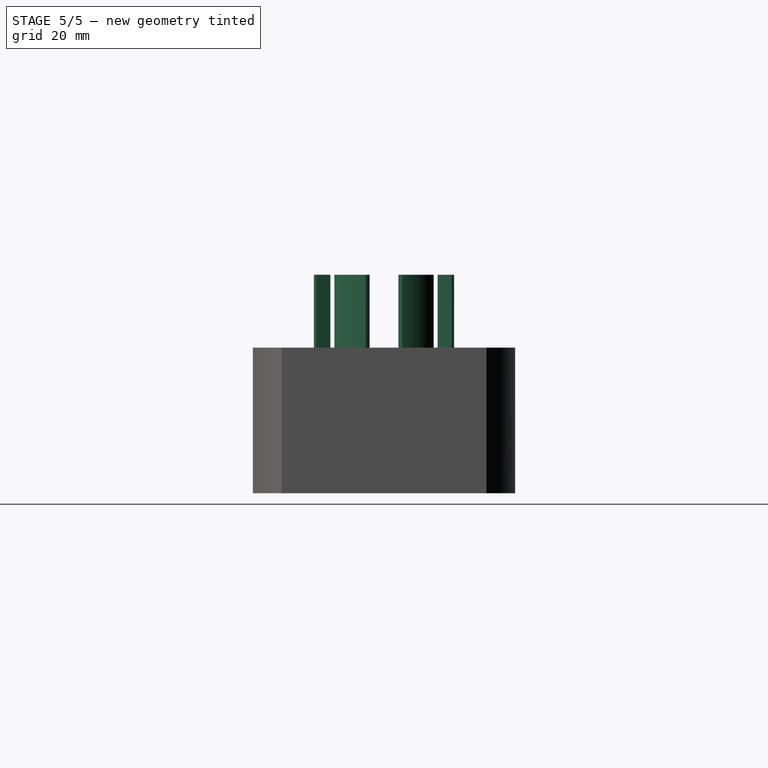
[diagram: stage 5 of 5 — right view after this stage's code; geometry added in this stage tinted green]
FEATURE [Part::Extrusion] Extrude004  label="Fingers"
  Base = -> Sketch003
  Dir = (0,0,1)
  DirMode = 2
  FaceMakerClass = Part::FaceMakerBullseye
  LengthFwd = 25
  LengthRev = 0
  Solid = true
  Symmetric = false
FEATURE [Part::MultiFuse] Fusion006
  Shapes = -> [Cut002,Cut003,Extrude009]
FEATURE [Sketcher::SketchObject] Sketch008
  ExternalGeometry = -> [Fusion006]
  FullyConstrained = true
  MapMode = 5
  Placement = pos=(0,0,40) rot=(0,0,1;0rad)
  Support = -> [Fusion006]
  sketch-geometry (38):
    g0: LineSegment StartX=120.15 StartY=19 StartZ=0 EndX=139.22 EndY=19 EndZ=0
    g1: LineSegment StartX=120.15 StartY=19 StartZ=0 EndX=138.57 EndY=23.9357 EndZ=0
    g2: LineSegment StartX=120.15 StartY=19 StartZ=0 EndX=138.57 EndY=14.0643 EndZ=0
    g3: ArcOfCircle CenterX=120.15 CenterY=19 CenterZ=0 NormalX=0 NormalY=0 NormalZ=1 AngleXU=0 Radius=19.07 StartAngle=5.49779 EndAngle=6.02139
    g4: LineSegment StartX=120.15 StartY=19 StartZ=0 EndX=133.635 EndY=5.51547 EndZ=0
    g5: ArcOfCircle CenterX=120.15 CenterY=19 CenterZ=0 NormalX=0 NormalY=0 NormalZ=1 AngleXU=0 Radius=19.07 StartAngle=4.45059 EndAngle=4.97419
    g6: LineSegment StartX=120.15 StartY=19 StartZ=0 EndX=115.214 EndY=0.579794 EndZ=0
    g7: LineSegment StartX=120.15 StartY=19 StartZ=0 EndX=125.086 EndY=0.579794 EndZ=0
    g8: ArcOfCircle CenterX=120.15 CenterY=19 CenterZ=0 NormalX=0 NormalY=0 NormalZ=1 AngleXU=0 Radius=19.07 StartAngle=3.40339 EndAngle=3.92699
    g9: LineSegment StartX=120.15 StartY=19 StartZ=0 EndX=106.665 EndY=5.51547 EndZ=0
    g10: LineSegment StartX=101.73 StartY=14.0643 StartZ=0 EndX=120.15 EndY=19 EndZ=0
    g11: ArcOfCircle CenterX=120.15 CenterY=19 CenterZ=0 NormalX=0 NormalY=0 NormalZ=1 AngleXU=0 Radius=19.07 StartAngle=0.261799 EndAngle=0.785398
    g12: ArcOfCircle CenterX=120.15 CenterY=19 CenterZ=0 NormalX=0 NormalY=0 NormalZ=1 AngleXU=0 Radius=19.07 StartAngle=1.309 EndAngle=1.8326
    g13: ArcOfCircle CenterX=120.15 CenterY=19 CenterZ=0 NormalX=0 NormalY=0 NormalZ=1 AngleXU=0 Radius=19.07 StartAngle=2.35619 EndAngle=2.87979
    g14: LineSegment StartX=133.635 StartY=32.4845 StartZ=0 EndX=120.15 EndY=19 EndZ=0
    g15: LineSegment StartX=125.086 StartY=37.4202 StartZ=0 EndX=120.15 EndY=19 EndZ=0
    g16: LineSegment StartX=115.214 StartY=37.4202 StartZ=0 EndX=120.15 EndY=19 EndZ=0
    g17: LineSegment StartX=106.665 StartY=32.4845 StartZ=0 EndX=120.15 EndY=19 EndZ=0
    g18: LineSegment StartX=101.73 StartY=23.9357 StartZ=0 EndX=120.15 EndY=19 EndZ=0
    g19: Circle CenterX=120.15 CenterY=19 CenterZ=0 NormalX=0 NormalY=0 NormalZ=1 AngleXU=0 Radius=24.07
    g20: LineSegment StartX=115.214 StartY=37.4202 StartZ=0 EndX=113.92 EndY=42.2498 EndZ=0
    g21: LineSegment StartX=125.086 StartY=37.4202 StartZ=0 EndX=126.38 EndY=42.2498 EndZ=0
    g22: LineSegment StartX=133.635 StartY=32.4845 StartZ=0 EndX=137.17 EndY=36.0201 EndZ=0
    g23: LineSegment StartX=138.57 StartY=23.9357 StartZ=0 EndX=143.4 EndY=25.2298 EndZ=0
    g24: LineSegment StartX=138.57 StartY=14.0643 StartZ=0 EndX=143.4 EndY=12.7702 EndZ=0
    g25: LineSegment StartX=133.635 StartY=5.51547 StartZ=0 EndX=137.17 EndY=1.97994 EndZ=0
    g26: LineSegment StartX=125.086 StartY=0.579794 StartZ=0 EndX=126.38 EndY=-4.24983 EndZ=0
    g27: LineSegment StartX=115.214 StartY=0.579794 StartZ=0 EndX=113.92 EndY=-4.24983 EndZ=0
    g28: LineSegment StartX=106.665 StartY=5.51547 StartZ=0 EndX=103.13 EndY=1.97994 EndZ=0
    g29: LineSegment StartX=101.73 StartY=14.0643 StartZ=0 EndX=96.9002 EndY=12.7702 EndZ=0
    g30: LineSegment StartX=101.73 StartY=23.9357 StartZ=0 EndX=96.9002 EndY=25.2298 EndZ=0
    g31: LineSegment StartX=106.665 StartY=32.4845 StartZ=0 EndX=103.13 EndY=36.0201 EndZ=0
    g32: ArcOfCircle CenterX=120.15 CenterY=19 CenterZ=0 NormalX=0 NormalY=0 NormalZ=1 AngleXU=0 Radius=24.07 StartAngle=1.309 EndAngle=1.8326
    g33: ArcOfCircle CenterX=120.15 CenterY=19 CenterZ=0 NormalX=0 NormalY=0 NormalZ=1 AngleXU=0 Radius=24.07 StartAngle=0.261799 EndAngle=0.785398
    g34: ArcOfCircle CenterX=120.15 CenterY=19 CenterZ=0 NormalX=0 NormalY=0 NormalZ=1 AngleXU=0 Radius=24.07 StartAngle=5.49779 EndAngle=6.02139
    g35: ArcOfCircle CenterX=120.15 CenterY=19 CenterZ=0 NormalX=0 NormalY=0 NormalZ=1 AngleXU=0 Radius=24.07 StartAngle=4.45059 EndAngle=4.97419
    g36: ArcOfCircle CenterX=120.15 CenterY=19 CenterZ=0 NormalX=0 NormalY=0 NormalZ=1 AngleXU=0 Radius=24.07 StartAngle=3.40339 EndAngle=3.92699
    g37: ArcOfCircle CenterX=120.15 CenterY=19 CenterZ=0 NormalX=0 NormalY=0 NormalZ=1 AngleXU=0 Radius=24.07 StartAngle=2.35619 EndAngle=2.87979
  constraints (101):
    c: Coincident(g0,g-4)
    c: PointOnObject(g0,g-4)
    c: Horizontal(g0)
    c: Coincident(g1,g0)
    c: PointOnObject(g1,g-3)
    c: Coincident(g2,g0)
    c: PointOnObject(g2,g-4)
    c: Angle(g2,g0) = 0.261799
    c: Angle(g0,g1) = 0.261799
    c: Coincident(g3,g0)
    c: Coincident(g3,g2)
    c: Coincident(g4,g0)
    c: Coincident(g4,g3)
    c: Angle(g4,g2) = 0.523599
    c: Coincident(g5,g0)
    c: PointOnObject(g5,g-4)
    c: Coincident(g6,g0)
    c: Coincident(g6,g5)
    c: Coincident(g7,g0)
    c: Coincident(g7,g5)
    c: Angle(g6,g7) = 0.523599
    c: Angle(g7,g4) = 0.523599
    c: Coincident(g8,g0)
    c: PointOnObject(g8,g-4)
    c: Coincident(g9,g0)
    c: Coincident(g9,g8)
    c: Coincident(g10,g8)
    c: Coincident(g10,g0)
    c: Angle(g10,g9) = 0.523599
    c: Angle(g9,g6) = 0.523599
    c: Coincident(g11,g0)
    c: Coincident(g11,g1)
    c: Coincident(g12,g0)
    c: PointOnObject(g12,g-3)
    c: Coincident(g13,g0)
    c: PointOnObject(g13,g-3)
    c: Coincident(g14,g11)
    c: Coincident(g14,g0)
    c: Coincident(g15,g12)
    c: Coincident(g15,g0)
    c: Coincident(g16,g12)
    c: Coincident(g16,g0)
    c: Coincident(g17,g13)
    c: Coincident(g17,g0)
    c: Coincident(g18,g13)
    c: Coincident(g18,g0)
    c: Angle(g1,g14) = 0.523599
    c: Angle(g15,g16) = 0.523599
    c: Angle(g14,g15) = 0.523599
    c: Angle(g16,g17) = 0.523599
    c: Angle(g17,g18) = 0.523599
    c: Coincident(g19,g0)
    c: Radius(g19) = 24.07
    c: Coincident(g20,g12)
    c: PointOnObject(g20,g19)
    c: Coincident(g21,g12)
    c: Coincident(g22,g11)
    c: PointOnObject(g22,g19)
    c: Coincident(g23,g1)
    c: Coincident(g24,g2)
    c: PointOnObject(g24,g19)
    c: Coincident(g25,g3)
    c: Coincident(g26,g5)
    c: PointOnObject(g26,g19)
    c: Coincident(g27,g5)
    c: Coincident(g28,g8)
    c: PointOnObject(g28,g19)
    c: Coincident(g29,g8)
    c: Coincident(g30,g13)
    c: PointOnObject(g30,g19)
    c: Coincident(g31,g13)
    c: Parallel(g31,g17)
    c: Parallel(g20,g16)
    c: Parallel(g14,g22)
    c: Parallel(g24,g2)
    c: Parallel(g26,g7)
    c: Parallel(g28,g9)
    c: Parallel(g30,g18)
    c: Coincident(g32,g0)
    c: Coincident(g32,g20)
    c: Coincident(g32,g21)
    c: Parallel(g21,g15)
    c: Coincident(g33,g32)
    c: Coincident(g33,g22)
    c: Coincident(g33,g23)
    c: Parallel(g23,g1)
    c: Coincident(g34,g32)
    c: Coincident(g34,g24)
    c: Coincident(g34,g25)
    c: Parallel(g25,g4)
    c: Coincident(g35,g32)
    c: Coincident(g35,g26)
    c: Coincident(g35,g27)
    c: Coincident(g36,g32)
    c: Coincident(g36,g28)
    c: Coincident(g36,g29)
    c: Coincident(g37,g32)
    c: Coincident(g37,g30)
    c: Coincident(g37,g31)
    c: Parallel(g29,g10)
    c: Parallel(g27,g6)
FEATURE [Part::Extrusion] Extrude010
  Base = -> Sketch008
  Dir = (0,0,1)
  DirMode = 2
  FaceMakerClass = Part::FaceMakerBullseye
  LengthFwd = 25
  LengthRev = 0
  Solid = true
  Symmetric = false
FEATURE [Part::MultiFuse] Fusion007  label="MotorMountMk3"
  Shapes = -> [Extrude010,Fusion006]
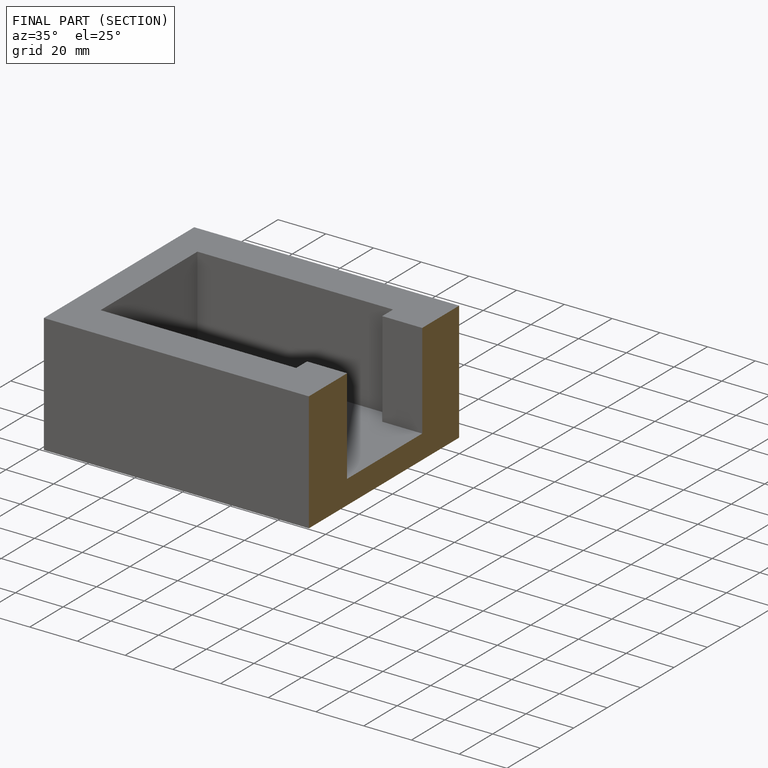
[diagram: finished part — half-section view (interior)]
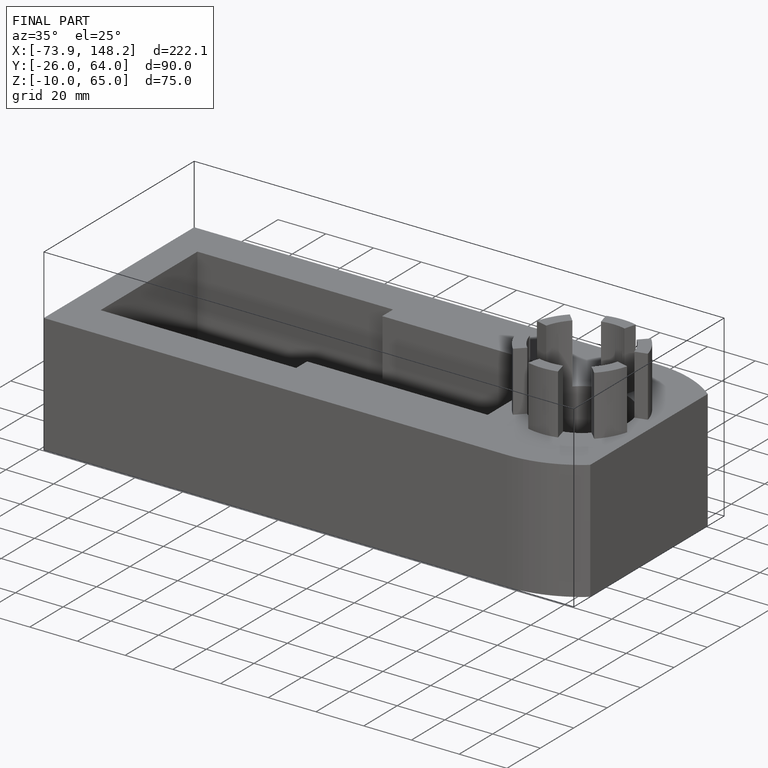
[diagram: finished part — iso view with bounding-box wireframe]
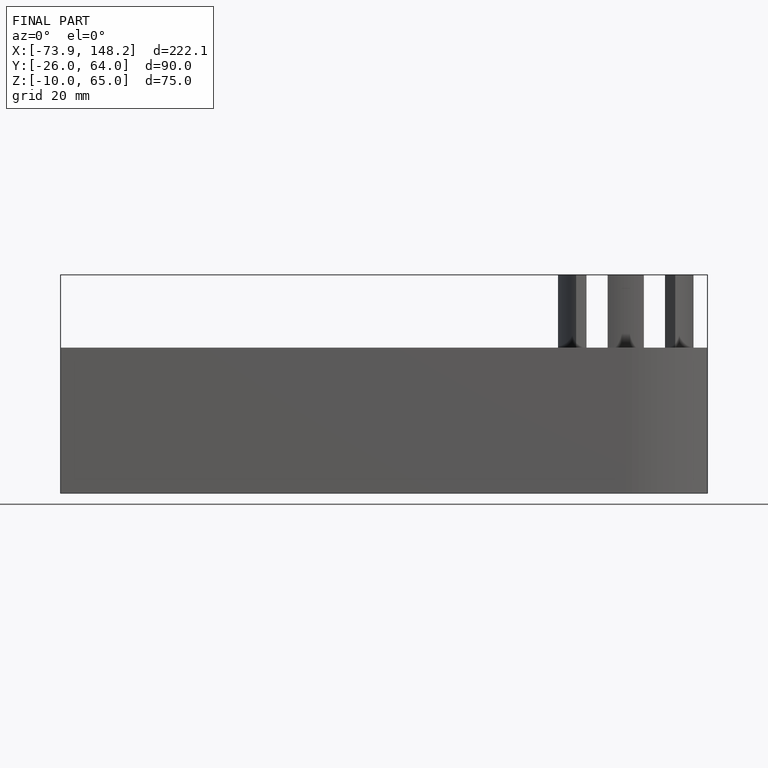
[diagram: finished part — front view with bounding-box wireframe]
